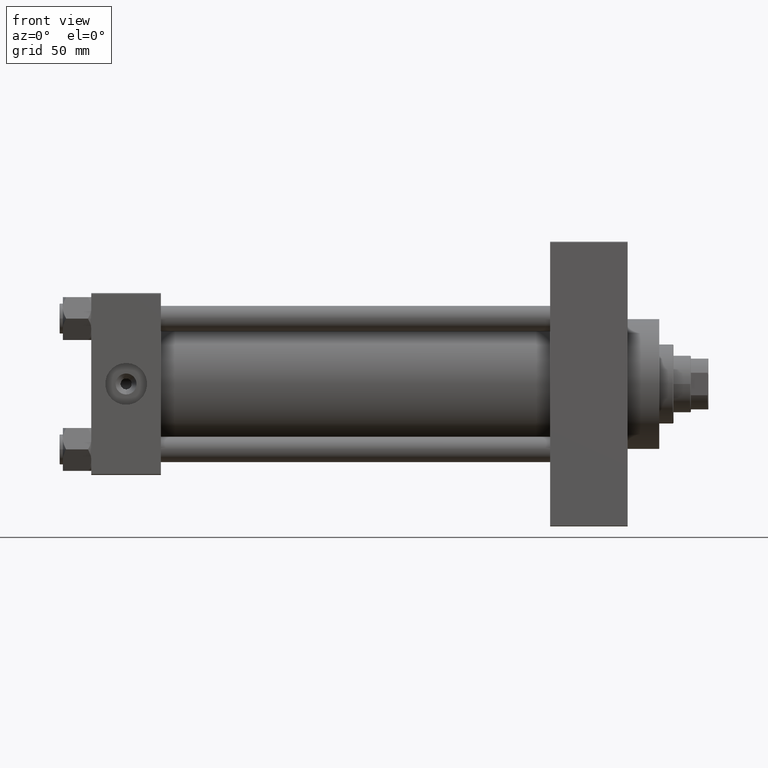
[diagram: clean part render]
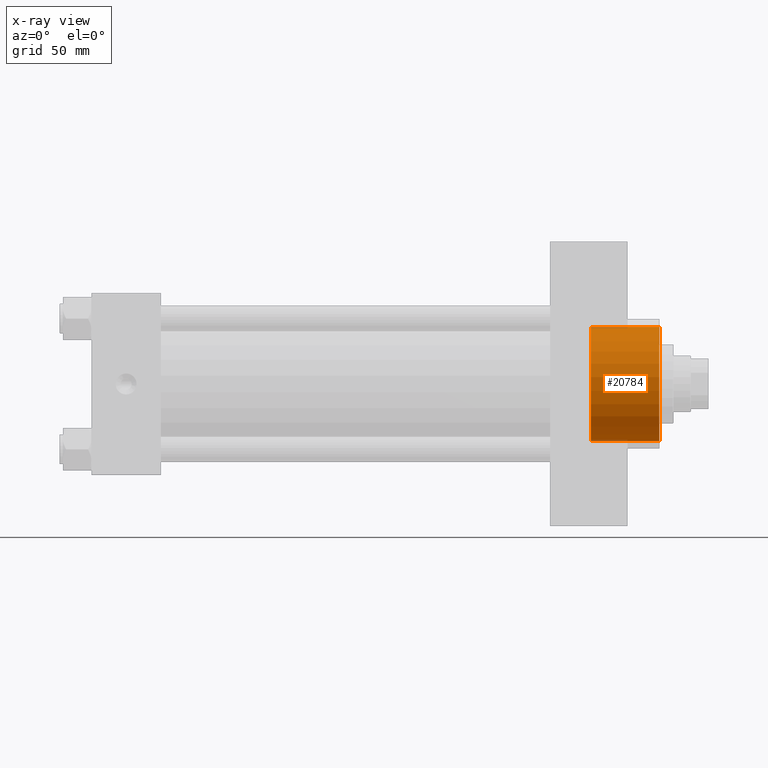
[diagram: x-ray — body ghosted, one internal face saturated and labeled with its STEP entity id]
A machine part, front view, then the same camera in x-ray: the body is ghosted and one INTERNAL B-rep face — a face not visible from any outside direction — is saturated and labeled: STEP entity #20784.
In plain terms, the highlighted cylindrical surface (partial cylindrical patch) has radius 36 mm, axis along (1, 0, 0).
Its self-contained STEP definition (entity closure, byte-faithful):
#1297 = EDGE_LOOP ( 'NONE', ( #15133, #29786, #25451, #27462 ) ) ;
#3695 = LINE ( 'NONE', #44194, #41975 ) ;
#7593 = LINE ( 'NONE', #22292, #19232 ) ;
#10439 = DIRECTION ( 'NONE',  ( 0.000000000000000000, 0.000000000000000000, -1.000000000000000000 ) ) ;
#12763 = VERTEX_POINT ( 'NONE', #32046 ) ;
#13565 = DIRECTION ( 'NONE',  ( 1.000000000000000000, -0.000000000000000000, -0.000000000000000000 ) ) ;
#15133 = ORIENTED_EDGE ( 'NONE', *, *, #32680, .F. ) ;
#15300 = EDGE_CURVE ( 'NONE', #12763, #40762, #3695, .T. ) ;
#15304 = CARTESIAN_POINT ( 'NONE',  ( 315.7399999999999523, 4.408728476930470856E-15, 36.00000000000000000 ) ) ;
#15905 = CARTESIAN_POINT ( 'NONE',  ( 359.0000000000000000, 0.000000000000000000, -36.00000000000000000 ) ) ;
#19192 = CARTESIAN_POINT ( 'NONE',  ( 315.7399999999999523, 0.000000000000000000, 0.000000000000000000 ) ) ;
#19232 = VECTOR ( 'NONE', #37023, 1000.000000000000000 ) ;
#20539 = CYLINDRICAL_SURFACE ( 'NONE', #42677, 36.00000000000000000 ) ;
#20784 = ADVANCED_FACE ( 'NONE', ( #28753 ), #20539, .F. ) ;
#21623 = CIRCLE ( 'NONE', #41666, 36.00000000000000000 ) ;
#22292 = CARTESIAN_POINT ( 'NONE',  ( 315.7399999999999523, 4.408728476930470856E-15, 36.00000000000000000 ) ) ;
#24168 = CARTESIAN_POINT ( 'NONE',  ( 315.7399999999999523, 0.000000000000000000, 0.000000000000000000 ) ) ;
#25129 = DIRECTION ( 'NONE',  ( 1.000000000000000000, -0.000000000000000000, -0.000000000000000000 ) ) ;
#25451 = ORIENTED_EDGE ( 'NONE', *, *, #39871, .T. ) ;
#27462 = ORIENTED_EDGE ( 'NONE', *, *, #15300, .F. ) ;
#28552 = VERTEX_POINT ( 'NONE', #43422 ) ;
#28753 = FACE_OUTER_BOUND ( 'NONE', #1297, .T. ) ;
#29209 = CIRCLE ( 'NONE', #42300, 36.00000000000000000 ) ;
#29671 = CARTESIAN_POINT ( 'NONE',  ( 359.0000000000000000, 0.000000000000000000, 0.000000000000000000 ) ) ;
#29786 = ORIENTED_EDGE ( 'NONE', *, *, #37843, .T. ) ;
#32046 = CARTESIAN_POINT ( 'NONE',  ( 315.7399999999999523, 0.000000000000000000, -36.00000000000000000 ) ) ;
#32680 = EDGE_CURVE ( 'NONE', #44559, #12763, #29209, .T. ) ;
#37023 = DIRECTION ( 'NONE',  ( 1.000000000000000000, -0.000000000000000000, -0.000000000000000000 ) ) ;
#37843 = EDGE_CURVE ( 'NONE', #44559, #28552, #7593, .T. ) ;
#39871 = EDGE_CURVE ( 'NONE', #28552, #40762, #21623, .T. ) ;
#40762 = VERTEX_POINT ( 'NONE', #15905 ) ;
#41399 = DIRECTION ( 'NONE',  ( 0.000000000000000000, 0.000000000000000000, -1.000000000000000000 ) ) ;
#41666 = AXIS2_PLACEMENT_3D ( 'NONE', #29671, #44861, #44163 ) ;
#41975 = VECTOR ( 'NONE', #25129, 1000.000000000000000 ) ;
#42300 = AXIS2_PLACEMENT_3D ( 'NONE', #19192, #45252, #41399 ) ;
#42677 = AXIS2_PLACEMENT_3D ( 'NONE', #24168, #13565, #10439 ) ;
#43422 = CARTESIAN_POINT ( 'NONE',  ( 359.0000000000000000, 4.408728476930470856E-15, 36.00000000000000000 ) ) ;
#44163 = DIRECTION ( 'NONE',  ( 0.000000000000000000, 0.000000000000000000, -1.000000000000000000 ) ) ;
#44194 = CARTESIAN_POINT ( 'NONE',  ( 315.7399999999999523, 0.000000000000000000, -36.00000000000000000 ) ) ;
#44559 = VERTEX_POINT ( 'NONE', #15304 ) ;
#44861 = DIRECTION ( 'NONE',  ( 1.000000000000000000, 0.000000000000000000, 0.000000000000000000 ) ) ;
#45252 = DIRECTION ( 'NONE',  ( 1.000000000000000000, 0.000000000000000000, 0.000000000000000000 ) ) ;